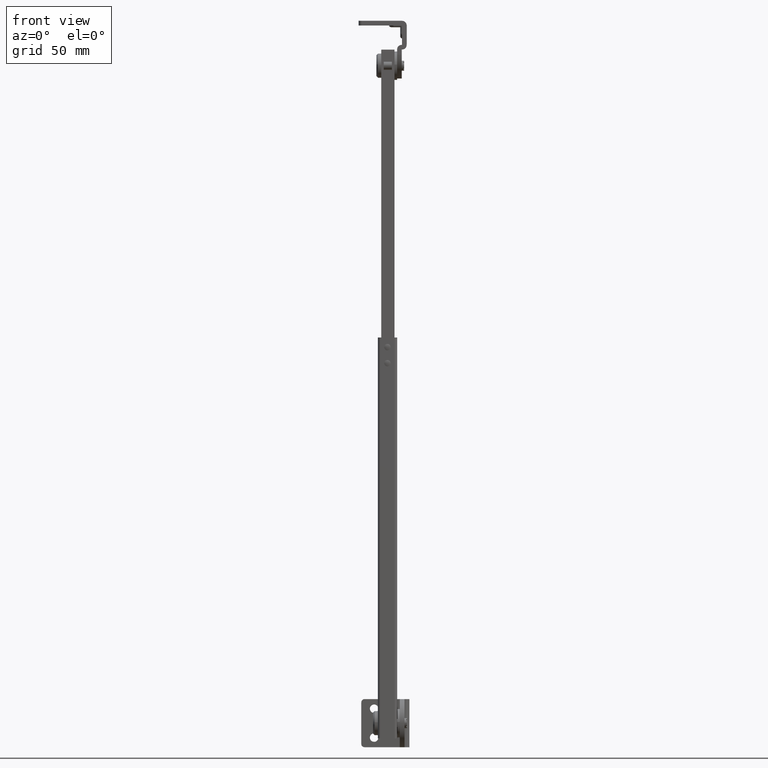
[diagram: clean part render]
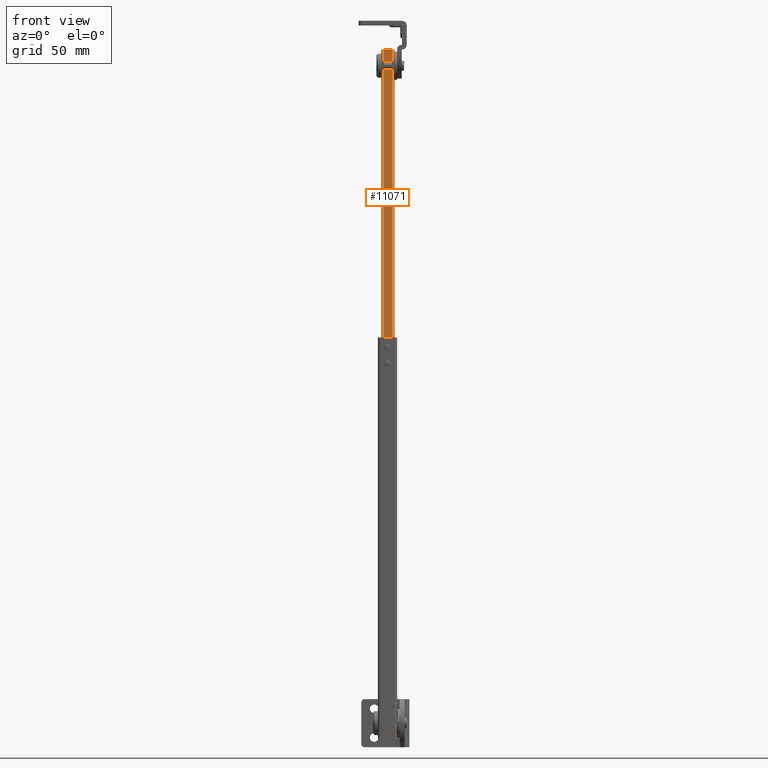
[diagram: same view with one face highlighted and labeled with its STEP entity id]
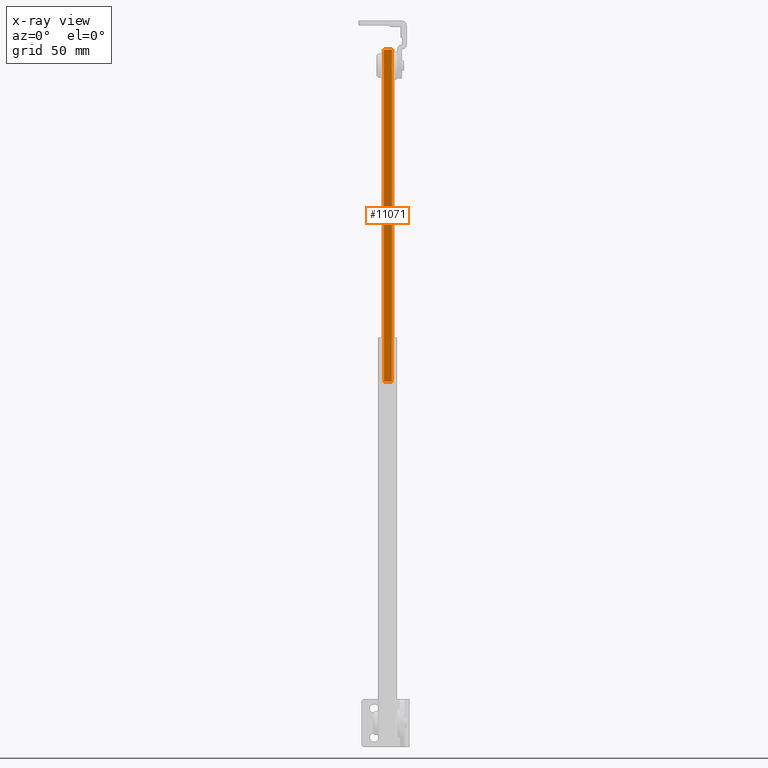
[diagram: x-ray of the same camera — body ghosted, the highlighted face saturated]
A machine part, front view. The second image highlights one B-rep face of the part: STEP entity #11071.
The next image is the same camera in x-ray: the body ghosted, the highlighted face saturated — about 0% of this face is hidden behind the body in this view.
In plain terms, the highlighted face is a freeform B-spline surface patch.
Its self-contained STEP definition (entity closure, byte-faithful):
#10639=CARTESIAN_POINT('',(-16.0,8.900000000000000,213.0));
#10640=VERTEX_POINT('',#10639);
#10697=CARTESIAN_POINT('',(-10.899993999999859,8.900000000000000,213.0));
#10698=VERTEX_POINT('',#10697);
#10704=CARTESIAN_POINT('',(-16.0,8.900000000000000,213.0));
#10705=CARTESIAN_POINT('',(-10.899993999999859,8.900000000000000,213.0));
#10706=QUASI_UNIFORM_CURVE('',1,(#10704,#10705),.UNSPECIFIED.,.F.,.U.);
#10707=EDGE_CURVE('',#10640,#10698,#10706,.T.);
#10765=CARTESIAN_POINT('',(-16.0,8.900002000000001,420.0));
#10766=VERTEX_POINT('',#10765);
#10772=CARTESIAN_POINT('',(-10.899993999999900,8.900002000000001,420.0));
#10773=VERTEX_POINT('',#10772);
#10774=CARTESIAN_POINT('',(-10.899993999999900,8.900002000000001,420.0));
#10775=CARTESIAN_POINT('',(-16.0,8.900002000000001,420.0));
#10776=QUASI_UNIFORM_CURVE('',1,(#10774,#10775),.UNSPECIFIED.,.F.,.U.);
#10777=EDGE_CURVE('',#10773,#10766,#10776,.T.);
#10998=CARTESIAN_POINT('',(-16.0,8.900000000000000,213.0));
#10999=CARTESIAN_POINT('',(-16.0,8.900002000000001,420.0));
#11000=QUASI_UNIFORM_CURVE('',1,(#10998,#10999),.UNSPECIFIED.,.F.,.U.);
#11001=EDGE_CURVE('',#10640,#10766,#11000,.T.);
#11024=CARTESIAN_POINT('',(-10.899993999999859,8.900000000000000,213.0));
#11025=CARTESIAN_POINT('',(-10.899993999999900,8.900002000000001,420.0));
#11026=QUASI_UNIFORM_CURVE('',1,(#11024,#11025),.UNSPECIFIED.,.F.,.U.);
#11027=EDGE_CURVE('',#10698,#10773,#11026,.T.);
#11060=CARTESIAN_POINT('',(-10.645248566559030,8.900002000000001,202.660350401206100));
#11061=CARTESIAN_POINT('',(-10.645248566559030,8.900002000000001,430.339655150966510));
#11062=CARTESIAN_POINT('',(-16.254745433440821,8.900002000000001,202.660350401206100));
#11063=CARTESIAN_POINT('',(-16.254745433440821,8.900002000000001,430.339655150966510));
#11064=B_SPLINE_SURFACE_WITH_KNOTS('',1,1,((#11060,#11062),(#11061,#11063)),.UNSPECIFIED.,.F.,.F.,.U.,(2,2),(2,2),(0.0,227.679304749760290),(0.0,5.609496866881791),.UNSPECIFIED.);
#11065=ORIENTED_EDGE('',*,*,#10707,.T.);
#11066=ORIENTED_EDGE('',*,*,#11027,.T.);
#11067=ORIENTED_EDGE('',*,*,#10777,.T.);
#11068=ORIENTED_EDGE('',*,*,#11001,.F.);
#11069=EDGE_LOOP('',(#11065,#11066,#11067,#11068));
#11070=FACE_OUTER_BOUND('',#11069,.T.);
#11071=ADVANCED_FACE('',(#11070),#11064,.T.);